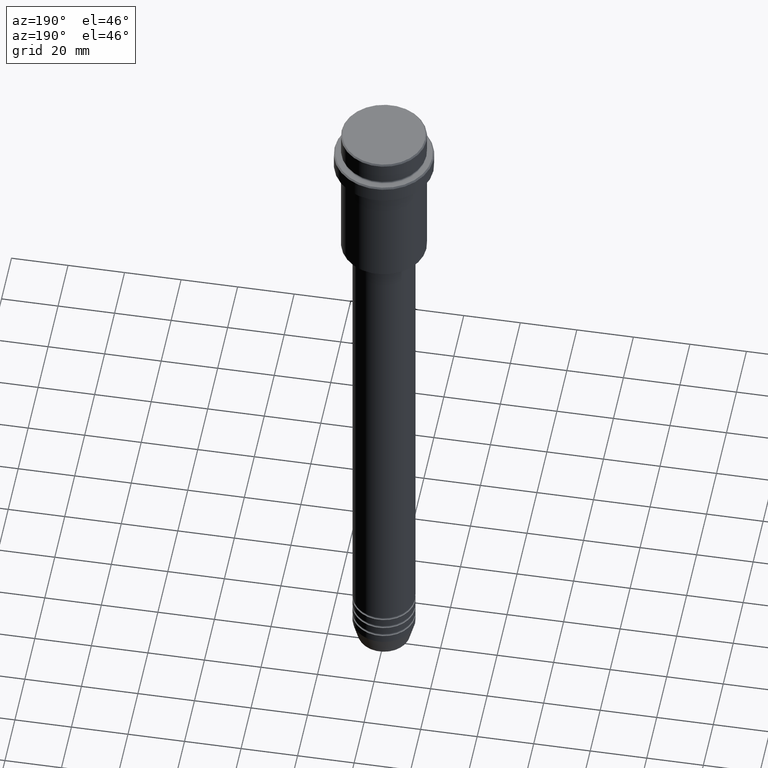
[diagram: clean part render]
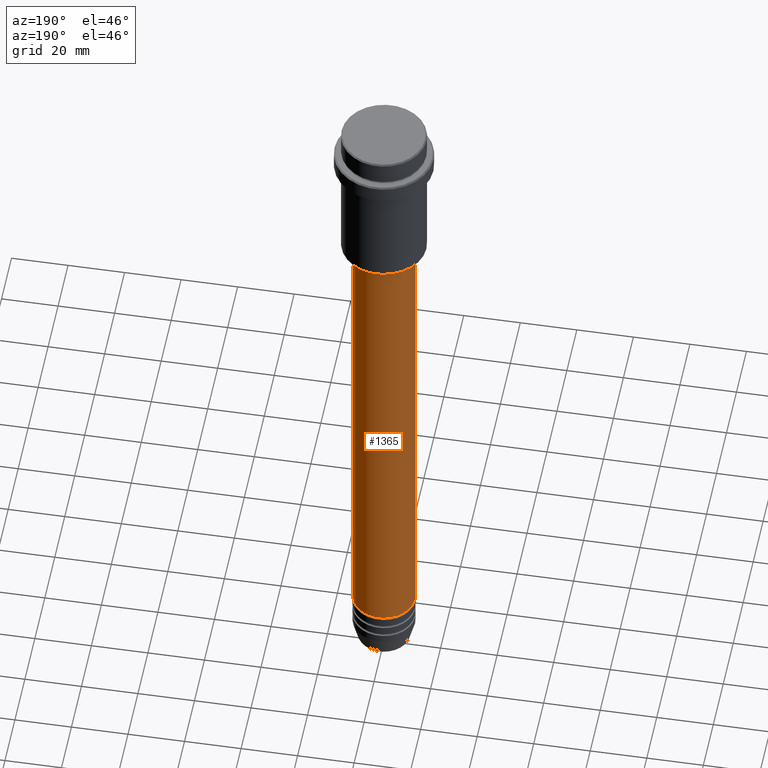
[diagram: same view with one face highlighted and labeled with its STEP entity id]
A machine part, auxiliary view. The second image highlights one B-rep face of the part: STEP entity #1365.
In plain terms, the highlighted cylindrical surface (edge-blend (fillet) strip) has radius 11 mm, axis along (-0, -0, 1).
Its self-contained STEP definition (entity closure, byte-faithful):
#39 = CARTESIAN_POINT ( 'NONE',  ( 10.99999999999999822, 0.000000000000000000, -56.00000000000000000 ) ) ;
#74 = LINE ( 'NONE', #840, #776 ) ;
#182 = CARTESIAN_POINT ( 'NONE',  ( 11.00000000000000000, 0.000000000000000000, -230.9999999999998863 ) ) ;
#209 = VERTEX_POINT ( 'NONE', #359 ) ;
#303 = AXIS2_PLACEMENT_3D ( 'NONE', #611, #1038, #1136 ) ;
#307 = VERTEX_POINT ( 'NONE', #39 ) ;
#359 = CARTESIAN_POINT ( 'NONE',  ( -10.99999999999999822, 1.347111479062088207E-15, -56.00000000000000000 ) ) ;
#394 = DIRECTION ( 'NONE',  ( -0.000000000000000000, -0.000000000000000000, 1.000000000000000000 ) ) ;
#408 = ORIENTED_EDGE ( 'NONE', *, *, #1146, .F. ) ;
#444 = EDGE_CURVE ( 'NONE', #1282, #307, #74, .T. ) ;
#458 = ORIENTED_EDGE ( 'NONE', *, *, #680, .T. ) ;
#459 = CARTESIAN_POINT ( 'NONE',  ( 0.000000000000000000, 0.000000000000000000, 0.000000000000000000 ) ) ;
#472 = DIRECTION ( 'NONE',  ( 1.000000000000000000, 0.000000000000000000, 0.000000000000000000 ) ) ;
#512 = EDGE_CURVE ( 'NONE', #1003, #209, #658, .T. ) ;
#581 = DIRECTION ( 'NONE',  ( 1.000000000000000000, 0.000000000000000000, 0.000000000000000000 ) ) ;
#611 = CARTESIAN_POINT ( 'NONE',  ( 0.000000000000000000, 0.000000000000000000, -230.9999999999998863 ) ) ;
#627 = CIRCLE ( 'NONE', #888, 10.99999999999999822 ) ;
#658 = LINE ( 'NONE', #1316, #1165 ) ;
#663 = DIRECTION ( 'NONE',  ( -0.000000000000000000, -0.000000000000000000, 1.000000000000000000 ) ) ;
#680 = EDGE_CURVE ( 'NONE', #1282, #1003, #980, .T. ) ;
#727 = EDGE_LOOP ( 'NONE', ( #458, #893, #408, #808 ) ) ;
#736 = AXIS2_PLACEMENT_3D ( 'NONE', #459, #895, #581 ) ;
#776 = VECTOR ( 'NONE', #663, 1000.000000000000000 ) ;
#808 = ORIENTED_EDGE ( 'NONE', *, *, #444, .F. ) ;
#840 = CARTESIAN_POINT ( 'NONE',  ( 11.00000000000000000, 0.000000000000000000, 0.000000000000000000 ) ) ;
#888 = AXIS2_PLACEMENT_3D ( 'NONE', #1154, #394, #472 ) ;
#893 = ORIENTED_EDGE ( 'NONE', *, *, #512, .T. ) ;
#895 = DIRECTION ( 'NONE',  ( -0.000000000000000000, -0.000000000000000000, 1.000000000000000000 ) ) ;
#980 = CIRCLE ( 'NONE', #303, 11.00000000000000000 ) ;
#1003 = VERTEX_POINT ( 'NONE', #1046 ) ;
#1038 = DIRECTION ( 'NONE',  ( -0.000000000000000000, -0.000000000000000000, 1.000000000000000000 ) ) ;
#1046 = CARTESIAN_POINT ( 'NONE',  ( -11.00000000000000000, 1.347111479062088405E-15, -230.9999999999998863 ) ) ;
#1096 = CYLINDRICAL_SURFACE ( 'NONE', #736, 11.00000000000000000 ) ;
#1101 = DIRECTION ( 'NONE',  ( -0.000000000000000000, -0.000000000000000000, 1.000000000000000000 ) ) ;
#1136 = DIRECTION ( 'NONE',  ( 1.000000000000000000, 0.000000000000000000, 0.000000000000000000 ) ) ;
#1146 = EDGE_CURVE ( 'NONE', #307, #209, #627, .T. ) ;
#1154 = CARTESIAN_POINT ( 'NONE',  ( 0.000000000000000000, 0.000000000000000000, -56.00000000000000000 ) ) ;
#1165 = VECTOR ( 'NONE', #1101, 1000.000000000000000 ) ;
#1282 = VERTEX_POINT ( 'NONE', #182 ) ;
#1316 = CARTESIAN_POINT ( 'NONE',  ( -11.00000000000000000, 1.347111479062088405E-15, 0.000000000000000000 ) ) ;
#1335 = FACE_OUTER_BOUND ( 'NONE', #727, .T. ) ;
#1365 = ADVANCED_FACE ( 'NONE', ( #1335 ), #1096, .T. ) ;